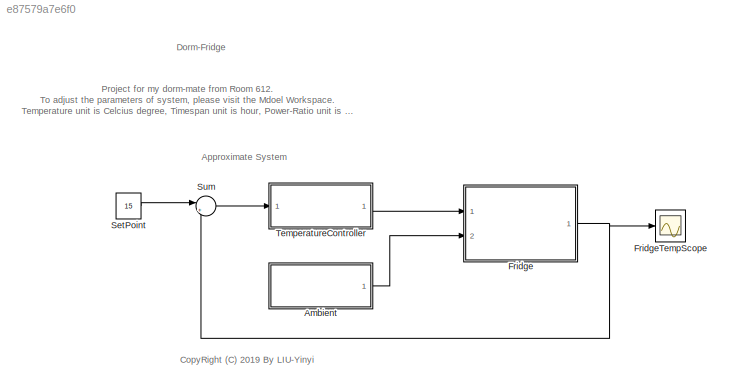
MODEL slx_e87579a7e6f0
KIND model
CONFIG AbsTol = auto
CONFIG EnableMultiTasking = off
CONFIG FixedStep = auto
CONFIG MaxStep = auto
CONFIG MinStep = auto
CONFIG RelTol = 1e-3
CONFIG SampleTimeConstraint = Unconstrained
CONFIG Solver = VariableStepAuto
CONFIG SolverName = VariableStepAuto
CONFIG StartTime = 0.0
CONFIG StopTime = 24.0
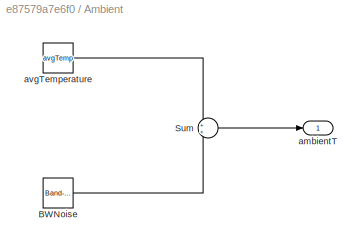
BLOCK [SubSystem] Ambient
  Ports = [0, 1]
  RequestExecContextInheritance = off
BLOCK [Reference] Ambient/BWNoise  REF=simulink/Sources/Band-Limited
White Noise
  Ports = [0, 1]
  SourceBlock = simulink/Sources/Band-Limited\nWhite Noise
  SourceProductBaseCode = SL
  SourceProductName = Simulink
  SourceType = Band-Limited White Noise.
BLOCK [Sum] Ambient/Sum
  IconShape = round
  InputSameDT = off
  OutDataTypeStr = Inherit: Inherit via internal rule
  Ports = [2, 1]
  SaturateOnIntegerOverflow = off
BLOCK [Outport] Ambient/ambientT
  IconDisplay = Port number
BLOCK [Constant] Ambient/avgTemperature
  Value = avgTemp
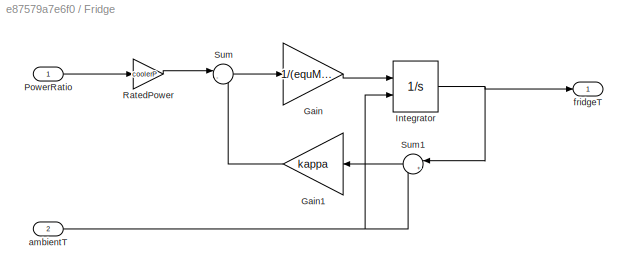
BLOCK [SubSystem] Fridge
  Ports = [2, 1]
  RequestExecContextInheritance = off
BLOCK [Gain] Fridge/Gain
  Gain = 1/(equM*heatC)
  OutDataTypeStr = Inherit: Inherit via internal rule
  ParamDataTypeStr = Inherit: Inherit via internal rule
  SaturateOnIntegerOverflow = off
BLOCK [Gain] Fridge/Gain1
  Gain = kappa
  OutDataTypeStr = Inherit: Inherit via internal rule
  ParamDataTypeStr = Inherit: Inherit via internal rule
  SaturateOnIntegerOverflow = off
BLOCK [Integrator] Fridge/Integrator
  InitialConditionSource = external
  Ports = [2, 1]
BLOCK [Inport] Fridge/PowerRatio
  IconDisplay = Port number
BLOCK [Gain] Fridge/RatedPower
  Gain = coolerP
  OutDataTypeStr = Inherit: Inherit via internal rule
  ParamDataTypeStr = Inherit: Inherit via internal rule
  SaturateOnIntegerOverflow = off
BLOCK [Sum] Fridge/Sum
  IconShape = round
  InputSameDT = off
  Inputs = |--
  OutDataTypeStr = Inherit: Inherit via internal rule
  Ports = [2, 1]
  SaturateOnIntegerOverflow = off
BLOCK [Sum] Fridge/Sum1
  IconShape = round
  InputSameDT = off
  Inputs = |+-
  OutDataTypeStr = Inherit: Inherit via internal rule
  Ports = [2, 1]
  SaturateOnIntegerOverflow = off
BLOCK [Inport] Fridge/ambientT
  IconDisplay = Port number
  Port = 2
BLOCK [Outport] Fridge/fridgeT
  IconDisplay = Port number
BLOCK [Scope] FridgeTempScope
  Floating = off
  NumInputPorts = 1
  Ports = [1]
  ScopeSpecificationString = Simulink.scopes.TimeScopeBlockCfg('CurrentConfiguration', extmgr.ConfigurationSet(extmgr.Configuration('Core','General UI',true),extmgr.Configuration('Core','Source UI',true),extmgr.Configuration('Sources','WiredSimulink',true),extmgr.Configuration('Visuals','Time Domain',true,'SerializedDisplays',{struct('MinYLimReal','18.83302','MaxYLimReal','26.24544','YLabelReal','','MinYLimMag','18.83302','Ma...<+1332ch>
BLOCK [Constant] SetPoint
  Value = 15
BLOCK [Sum] Sum
  IconShape = round
  InputSameDT = off
  Inputs = |+-
  OutDataTypeStr = Inherit: Inherit via internal rule
  Ports = [2, 1]
  SaturateOnIntegerOverflow = off
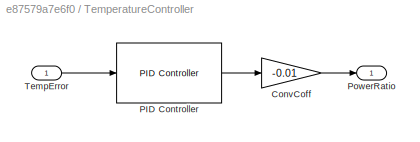
BLOCK [SubSystem] TemperatureController
  Ports = [1, 1]
  RequestExecContextInheritance = off
BLOCK [Gain] TemperatureController/ConvCoff
  Gain = -0.01
  OutDataTypeStr = Inherit: Inherit via internal rule
  ParamDataTypeStr = Inherit: Inherit via internal rule
  SaturateOnIntegerOverflow = off
BLOCK [Reference] TemperatureController/PID Controller  REF=simulink/Continuous/PID Controller
  Ports = [1, 1]
  SourceBlock = simulink/Continuous/PID Controller
  SourceProductBaseCode = SL
  SourceProductName = Simulink
  SourceType = PID 1dof
BLOCK [Outport] TemperatureController/PowerRatio
  IconDisplay = Port number
BLOCK [Inport] TemperatureController/TempError
  IconDisplay = Port number
ANNOTATION (root): Dorm-Fridge
ANNOTATION (root): Approximate System
ANNOTATION (root): <copyright redacted>
ANNOTATION (root): Project for my dorm-mate from Room 612. To adjust the parameters of system, please visit the Mdoel Workspace. Temperature unit is Celcius degree, Timespan unit is hour, Power-Ratio unit is percentage.
LINE Ambient/BWNoise:1 -> Ambient/Sum:2
LINE Ambient/Sum:1 -> Ambient/ambientT:1
LINE Ambient/avgTemperature:1 -> Ambient/Sum:1
LINE Ambient:1 -> Fridge:2
LINE Fridge/Gain1:1 -> Fridge/Sum:2
LINE Fridge/Gain:1 -> Fridge/Integrator:1
NET Fridge/Integrator:1 -> Fridge/Sum1:1, Fridge/fridgeT:1
LINE Fridge/PowerRatio:1 -> Fridge/RatedPower:1
LINE Fridge/RatedPower:1 -> Fridge/Sum:1
LINE Fridge/Sum1:1 -> Fridge/Gain1:1
LINE Fridge/Sum:1 -> Fridge/Gain:1
NET Fridge/ambientT:1 -> Fridge/Integrator:2, Fridge/Sum1:2
NET Fridge:1 -> FridgeTempScope:1, Sum:2
LINE SetPoint:1 -> Sum:1
LINE Sum:1 -> TemperatureController:1
LINE TemperatureController/ConvCoff:1 -> TemperatureController/PowerRatio:1
LINE TemperatureController/PID Controller:1 -> TemperatureController/ConvCoff:1
LINE TemperatureController/TempError:1 -> TemperatureController/PID Controller:1
LINE TemperatureController:1 -> Fridge:1
note: NET lines group one-source signal fan-out (src -> all destinations, sorted); 1:1 wires keep LINE
